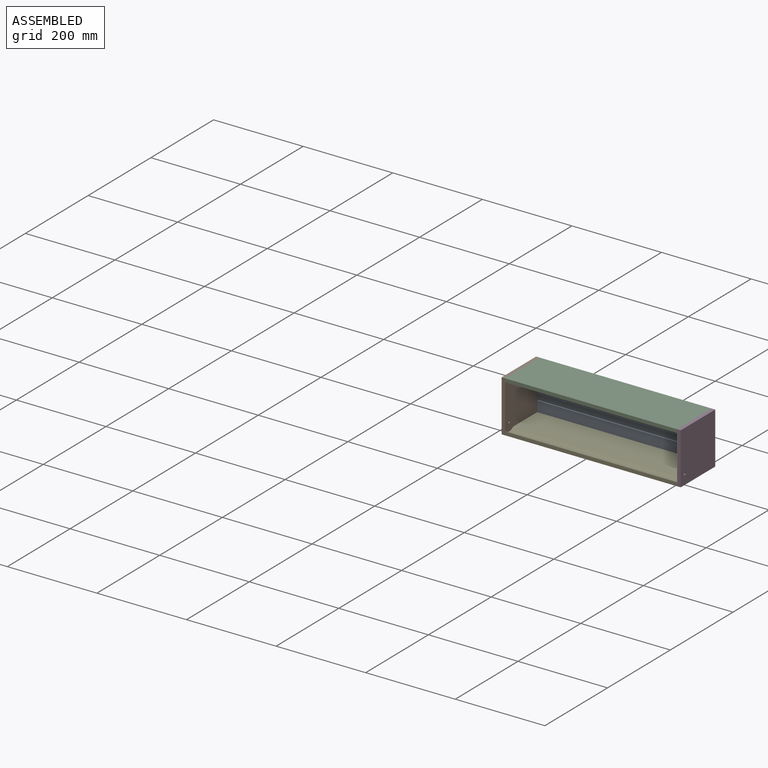
[diagram: assembled view]
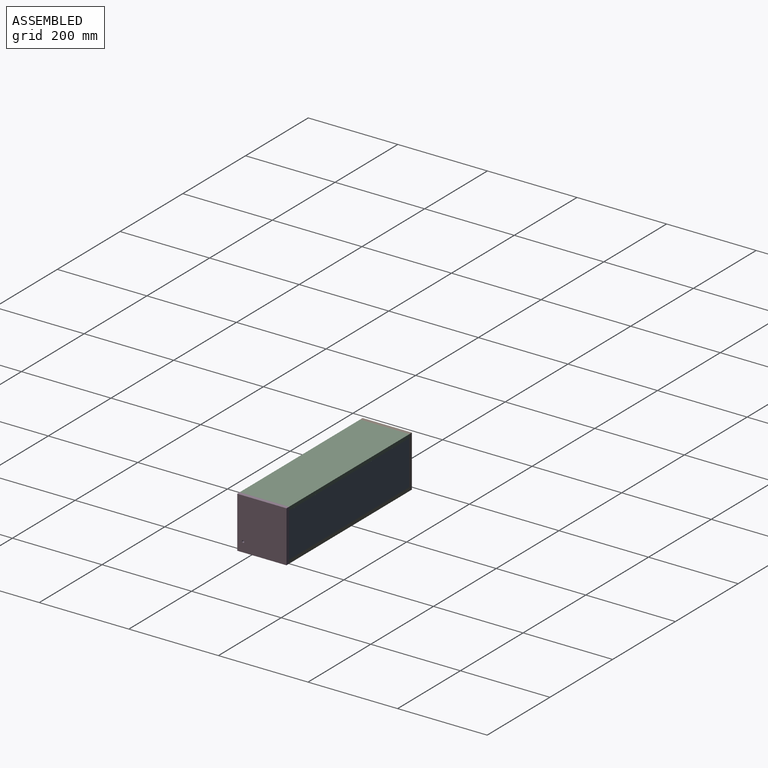
[diagram: assembled view, second angle]
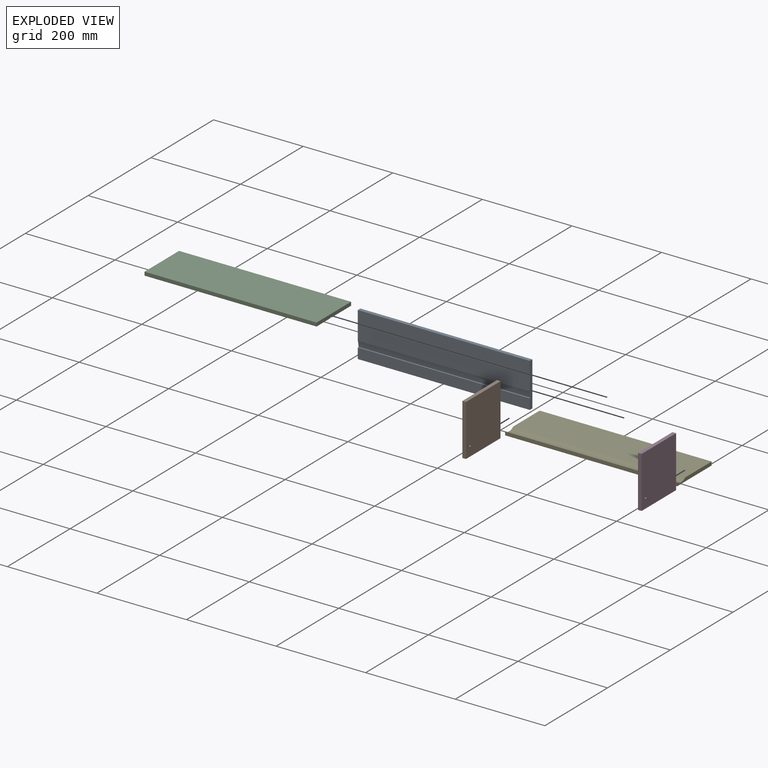
[diagram: exploded view]
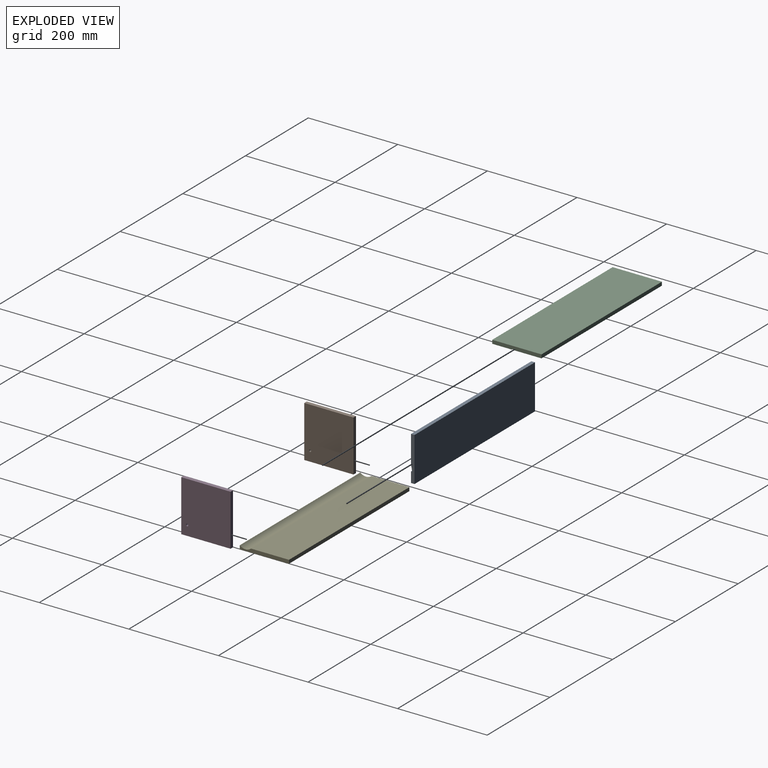
[diagram: exploded view, second angle]
ASSEMBLY  parts=5 mates=4
PART A: 9 faces, bbox 384x8x99 mm
  f0: plane 384x8mm, normal (0,0,-1), area 3072mm2, adj f1,f6,f7,f8
  f1: plane 384x99mm, normal (0,1,0), area 38016mm2, adj f0,f2,f7,f8
  f2: plane 384x8mm, normal (0,0,1), area 3072mm2, adj f1,f3,f7,f8
  f3: plane 384x61.7mm, normal (0,-1,0), area 23691.9mm2, adj f2,f4,f7,f8
  f4: cylinder r=92mm len=384mm, axis (-1,0,0), area 5347.1mm2, adj f3,f5,f7,f8
  f5: plane 384x2.5mm, normal (0,-0.1,0.99), area 963.7mm2, adj f4,f6,f7,f8
  f6: plane 384x23.35mm, normal (0,-1,0), area 8968mm2, adj f0,f5,f7,f8
  f7: plane 99x8mm, normal (1,0,0), area 772.1mm2, adj f0,f1,f2,f3,f4,f5,f6
  f8: plane 99x8mm, normal (-1,0,0), area 772.1mm2, adj f0,f1,f2,f3,f4,f5,f6
PART B: 7 faces, bbox 8x110x115 mm
  f0: plane 115x8mm, normal (0,-1,0), area 920mm2, adj f1,f3,f5,f6
  f1: plane 110x8mm, normal (0,0,-1), area 880mm2, adj f0,f2,f5,f6
  f2: plane 115x8mm, normal (0,1,0), area 920mm2, adj f1,f3,f5,f6
  f3: plane 110x8mm, normal (0,0,1), area 880mm2, adj f0,f2,f5,f6
  f4: cylinder r=2.5mm len=8mm, axis (-1,0,0), area 125.7mm2, adj f5,f6
  f5: plane 115x110mm, normal (1,0,0), area 12630.4mm2, adj f0,f1,f2,f3,f4
  f6: plane 115x110mm, normal (-1,0,0), area 12630.4mm2, adj f0,f1,f2,f3,f4
PART C: 9 faces, bbox 384x110x8 mm
  f0: plane 384x8mm, normal (0,-1,0), area 3072mm2, adj f1,f6,f7,f8
  f1: plane 384x43.94mm, normal (0,0,-1), area 16872mm2, adj f0,f2,f7,f8
  f2: plane 384x1.45mm, normal (0,0.94,-0.34), area 593.2mm2, adj f1,f3,f7,f8
  f3: cylinder r=92mm len=384mm, axis (-1,0,0), area 1538.4mm2, adj f2,f4,f7,f8
  f4: plane 384x61.8mm, normal (0,0,-1), area 23731.4mm2, adj f3,f5,f7,f8
  f5: plane 384x8mm, normal (0,1,0), area 3072mm2, adj f4,f6,f7,f8
  f6: plane 384x110mm, normal (0,0,1), area 42240mm2, adj f0,f5,f7,f8
  f7: plane 110x8mm, normal (1,0,0), area 876.8mm2, adj f0,f1,f2,f3,f4,f5,f6
  f8: plane 110x8mm, normal (-1,0,0), area 876.8mm2, adj f0,f1,f2,f3,f4,f5,f6
PART D: same geometry as B
PART E: 8 faces, bbox 384x110x8 mm
  f0: cylinder r=18.74mm len=384mm, axis (-1,0,0), area 10467.9mm2, adj f1,f5,f6,f7
  f1: plane 384x0.54mm, normal (0,0,1), area 207.4mm2, adj f0,f2,f6,f7
  f2: plane 384x8mm, normal (0,-1,0), area 3072mm2, adj f1,f3,f6,f7
  f3: plane 384x110mm, normal (0,0,-1), area 42240mm2, adj f2,f4,f6,f7
  f4: plane 384x8mm, normal (0,1,0), area 3072mm2, adj f3,f5,f6,f7
  f5: plane 384x84.54mm, normal (0,0,1), area 32463.4mm2, adj f0,f4,f6,f7
  f6: plane 110x8mm, normal (1,0,0), area 799mm2, adj f0,f1,f2,f3,f4,f5
  f7: plane 110x8mm, normal (-1,0,0), area 799mm2, adj f0,f1,f2,f3,f4,f5
PLACE A t=(20.06,-24.07,10.02)mm
PLACE B t=(-179.94,-24.07,10.02)mm
PLACE C t=(20.06,-24.07,10.02)mm
PLACE D t=(212.06,-24.07,10.02)mm
PLACE E t=(20.06,-24.07,10.02)mm fixed
MATE fastened C.f8 <-> A.f8  axis (-1,0,0) through (-171.94,85.93,117.02)mm
MATE fastened D.f0 <-> E.f2  axis (0,-1,0) through (212.06,-24.07,10.02)mm
MATE fastened B.f0 <-> E.f2  axis (0,1,0) through (-171.94,-24.07,10.02)mm
MATE fastened A.f8 <-> E.f7  axis (-1,0,0) through (-171.94,85.93,18.02)mm
